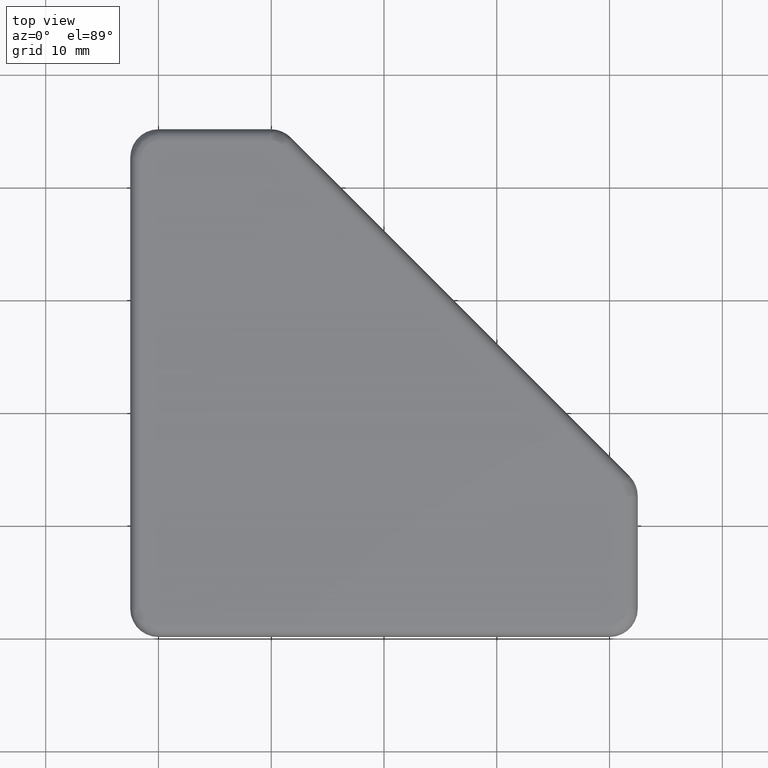
[diagram: clean part render]
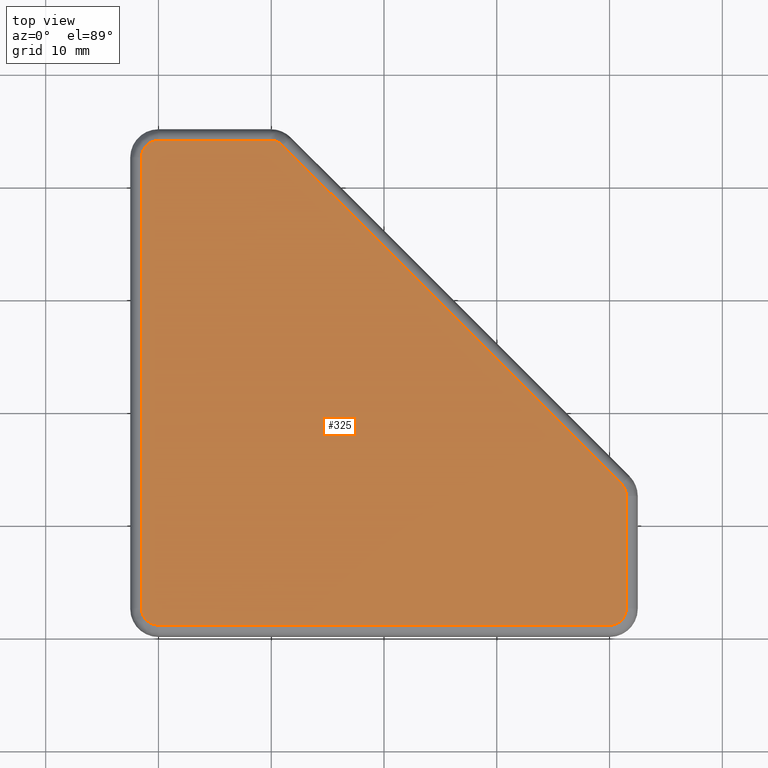
[diagram: same view with one face highlighted and labeled with its STEP entity id]
A machine part, top view. The second image highlights one B-rep face of the part: STEP entity #325.
In plain terms, the highlighted planar face has unit normal (0, 0, 1).
Its self-contained STEP definition (entity closure, byte-faithful):
#233=CARTESIAN_POINT('',(-26.999976921299130,-4.499999774508175,2.499999999989996));
#234=DIRECTION('',(0.0,0.0,1.0));
#235=DIRECTION('',(1.0,0.0,0.0));
#236=AXIS2_PLACEMENT_3D('',#233,#234,#235);
#237=PLANE('',#236);
#238=CARTESIAN_POINT('',(21.499977203035488,12.464422160532582,2.499999999989996));
#239=VERTEX_POINT('',#238);
#240=CARTESIAN_POINT('',(21.060637421851421,13.525082218756763,2.499999999989996));
#241=VERTEX_POINT('',#240);
#242=CARTESIAN_POINT('',(19.999977363626801,12.464422160532150,2.499999999989996));
#243=DIRECTION('',(0.0,0.0,1.0));
#244=DIRECTION('',(1.0,2.870593E-013,0.0));
#245=AXIS2_PLACEMENT_3D('',#242,#243,#244);
#246=CIRCLE('',#245,1.499999839408687);
#247=EDGE_CURVE('',#239,#241,#246,.T.);
#248=ORIENTED_EDGE('',*,*,#247,.T.);
#249=CARTESIAN_POINT('',(-8.974897171584519,43.560616812193160,2.499999999989996));
#250=VERTEX_POINT('',#249);
#251=CARTESIAN_POINT('',(21.060637421850888,13.525082218756269,2.499999999989996));
#252=DIRECTION('',(-0.707106781186530,0.707106781186565,0.0));
#253=VECTOR('',#252,42.476660375163696);
#254=LINE('',#251,#253);
#255=EDGE_CURVE('',#241,#250,#254,.T.);
#256=ORIENTED_EDGE('',*,*,#255,.T.);
#257=CARTESIAN_POINT('',(-10.035555796835363,43.999955999820031,2.499999999989996));
#258=VERTEX_POINT('',#257);
#259=CARTESIAN_POINT('',(-10.035555796835299,42.499958186942386,2.499999999989996));
#260=DIRECTION('',(0.0,0.0,1.0));
#261=DIRECTION('',(-2.629010E-014,1.0,0.0));
#262=AXIS2_PLACEMENT_3D('',#259,#260,#261);
#263=CIRCLE('',#262,1.499997812877652);
#264=EDGE_CURVE('',#250,#258,#263,.T.);
#265=ORIENTED_EDGE('',*,*,#264,.T.);
#266=CARTESIAN_POINT('',(-19.999976796795497,43.999955999820038,2.499999999989996));
#267=VERTEX_POINT('',#266);
#268=CARTESIAN_POINT('',(-10.035555796835363,43.999955999820031,2.499999999989996));
#269=DIRECTION('',(-1.0,0.0,0.0));
#270=VECTOR('',#269,9.964420999960138);
#271=LINE('',#268,#270);
#272=EDGE_CURVE('',#258,#267,#271,.T.);
#273=ORIENTED_EDGE('',*,*,#272,.T.);
#274=CARTESIAN_POINT('',(-21.499976796785500,42.499955999830036,2.499999999989996));
#275=VERTEX_POINT('',#274);
#276=CARTESIAN_POINT('',(-19.999976796795497,42.499955999830036,2.499999999989996));
#277=DIRECTION('',(0.0,0.0,1.0));
#278=DIRECTION('',(1.0,0.0,0.0));
#279=AXIS2_PLACEMENT_3D('',#276,#277,#278);
#280=CIRCLE('',#279,1.499999999990003);
#281=EDGE_CURVE('',#267,#275,#280,.T.);
#282=ORIENTED_EDGE('',*,*,#281,.T.);
#283=CARTESIAN_POINT('',(-21.499976796785536,2.500000406240051,2.499999999989996));
#284=VERTEX_POINT('',#283);
#285=CARTESIAN_POINT('',(-21.499976796785500,42.499955999830036,2.499999999989996));
#286=DIRECTION('',(0.0,-1.0,0.0));
#287=VECTOR('',#286,39.999955593589981);
#288=LINE('',#285,#287);
#289=EDGE_CURVE('',#275,#284,#288,.T.);
#290=ORIENTED_EDGE('',*,*,#289,.T.);
#291=CARTESIAN_POINT('',(-19.999976890545359,1.000000499999873,2.499999999989996));
#292=VERTEX_POINT('',#291);
#293=CARTESIAN_POINT('',(-19.999976890545362,2.500000406240051,2.499999999989996));
#294=DIRECTION('',(0.0,0.0,1.0));
#295=DIRECTION('',(1.224647E-016,-1.0,0.0));
#296=AXIS2_PLACEMENT_3D('',#293,#294,#295);
#297=CIRCLE('',#296,1.499999906240177);
#298=EDGE_CURVE('',#284,#292,#297,.T.);
#299=ORIENTED_EDGE('',*,*,#298,.T.);
#300=CARTESIAN_POINT('',(19.999976703044741,1.000000499999827,2.499999999989996));
#301=VERTEX_POINT('',#300);
#302=CARTESIAN_POINT('',(-19.999976890545359,1.000000499999873,2.499999999989996));
#303=DIRECTION('',(1.0,0.0,0.0));
#304=VECTOR('',#303,39.999953593590099);
#305=LINE('',#302,#304);
#306=EDGE_CURVE('',#292,#301,#305,.T.);
#307=ORIENTED_EDGE('',*,*,#306,.T.);
#308=CARTESIAN_POINT('',(21.499977203034771,2.500000999989950,2.499999999989996));
#309=VERTEX_POINT('',#308);
#310=CARTESIAN_POINT('',(19.999976703044741,2.500000999989857,2.499999999989996));
#311=DIRECTION('',(0.0,0.0,1.0));
#312=DIRECTION('',(1.0,8.348875E-015,0.0));
#313=AXIS2_PLACEMENT_3D('',#310,#311,#312);
#314=CIRCLE('',#313,1.500000499990030);
#315=EDGE_CURVE('',#301,#309,#314,.T.);
#316=ORIENTED_EDGE('',*,*,#315,.T.);
#317=CARTESIAN_POINT('',(21.499977203034771,2.500000999989950,2.499999999989996));
#318=DIRECTION('',(0.0,1.0,0.0));
#319=VECTOR('',#318,9.964421160542990);
#320=LINE('',#317,#319);
#321=EDGE_CURVE('',#309,#239,#320,.T.);
#322=ORIENTED_EDGE('',*,*,#321,.T.);
#323=EDGE_LOOP('',(#248,#256,#265,#273,#282,#290,#299,#307,#316,#322));
#324=FACE_OUTER_BOUND('',#323,.T.);
#325=ADVANCED_FACE('',(#324),#237,.T.);